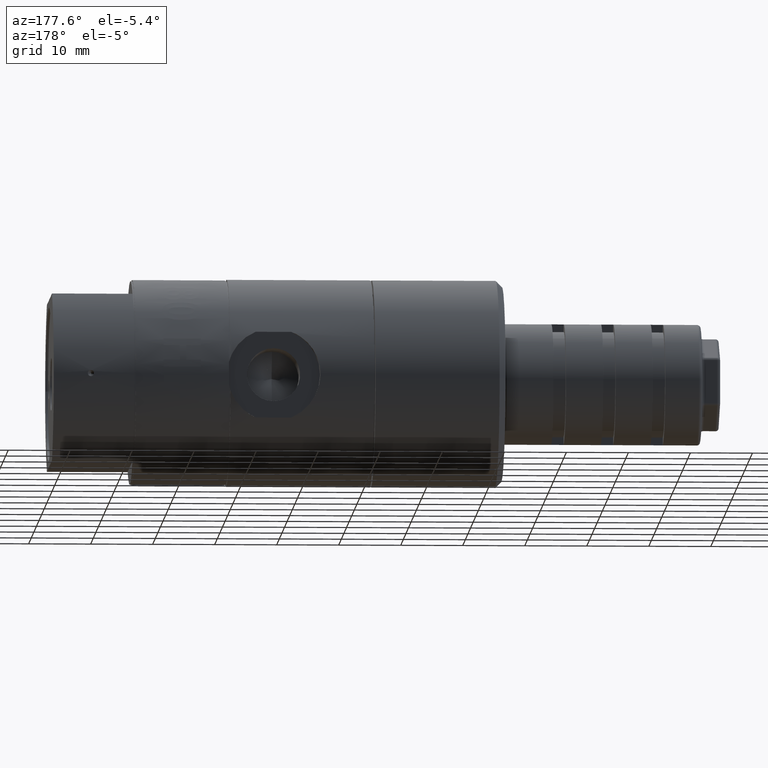
[diagram: clean part render]
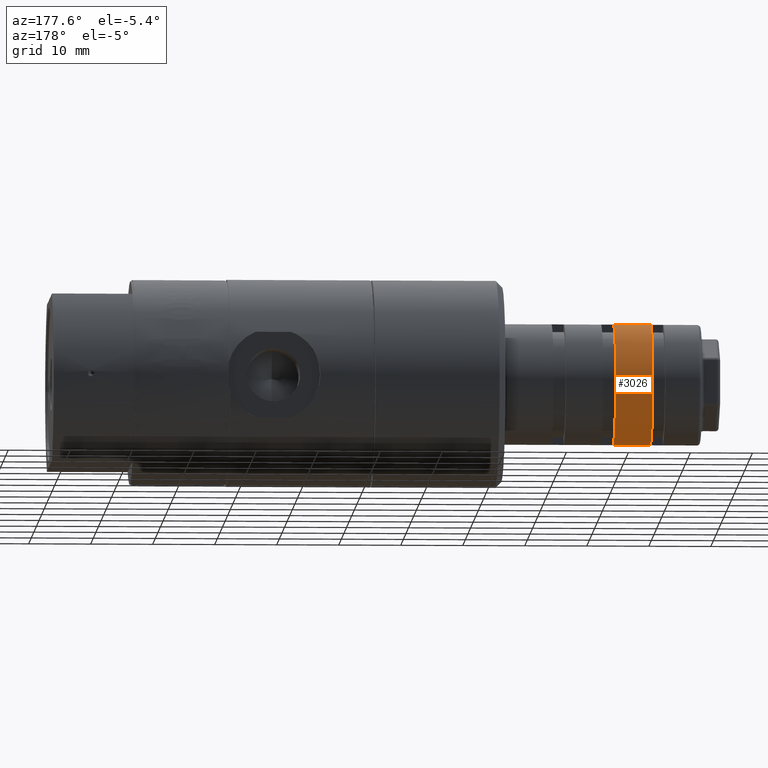
[diagram: same view with one face highlighted and labeled with its STEP entity id]
A machine part, auxiliary view. The second image highlights one B-rep face of the part: STEP entity #3026.
In plain terms, the highlighted cylindrical surface (partial cylindrical patch) has radius 9.75 mm, axis along (1, 0, 0).
Its self-contained STEP definition (entity closure, byte-faithful):
#193 = CARTESIAN_POINT ( 'NONE',  ( -90.89999999999999100, -1.512177427547000100E-015, -9.750000000000000000 ) ) ;
#1986 = CARTESIAN_POINT ( 'NONE',  ( -104.8999999999999900, 0.0000000000000000000, 0.0000000000000000000 ) ) ;
#2418 = LINE ( 'NONE', #9553, #4417 ) ;
#2652 = EDGE_CURVE ( 'NONE', #15893, #4868, #17096, .T. ) ;
#2846 = ORIENTED_EDGE ( 'NONE', *, *, #7999, .T. ) ;
#3026 = ADVANCED_FACE ( 'NONE', ( #12748 ), #7515, .T. ) ;
#3332 = CARTESIAN_POINT ( 'NONE',  ( -90.89999999999999100, 0.0000000000000000000, 0.0000000000000000000 ) ) ;
#4148 = VECTOR ( 'NONE', #6517, 1000.000000000000000 ) ;
#4417 = VECTOR ( 'NONE', #12604, 1000.000000000000000 ) ;
#4711 = DIRECTION ( 'NONE',  ( 0.0000000000000000000, -2.775557561562890400E-016, -1.000000000000000000 ) ) ;
#4714 = DIRECTION ( 'NONE',  ( 0.0000000000000000000, 2.775557561562890400E-016, 1.000000000000000000 ) ) ;
#4758 = CARTESIAN_POINT ( 'NONE',  ( -96.90000000000000600, 2.706168622523819900E-015, 9.750000000000000000 ) ) ;
#4868 = VERTEX_POINT ( 'NONE', #193 ) ;
#5887 = EDGE_CURVE ( 'NONE', #9437, #15893, #17994, .T. ) ;
#6451 = EDGE_LOOP ( 'NONE', ( #8856, #18518, #2846, #7022 ) ) ;
#6517 = DIRECTION ( 'NONE',  ( 1.000000000000000000, 0.0000000000000000000, 0.0000000000000000000 ) ) ;
#6670 = EDGE_CURVE ( 'NONE', #9437, #11404, #2418, .T. ) ;
#6689 = AXIS2_PLACEMENT_3D ( 'NONE', #3332, #9302, #4714 ) ;
#7022 = ORIENTED_EDGE ( 'NONE', *, *, #2652, .F. ) ;
#7515 = CYLINDRICAL_SURFACE ( 'NONE', #9235, 9.750000000000000000 ) ;
#7669 = CARTESIAN_POINT ( 'NONE',  ( -96.90000000000000600, -1.512177427547000100E-015, -9.750000000000000000 ) ) ;
#7999 = EDGE_CURVE ( 'NONE', #11404, #4868, #12635, .T. ) ;
#8856 = ORIENTED_EDGE ( 'NONE', *, *, #5887, .F. ) ;
#9235 = AXIS2_PLACEMENT_3D ( 'NONE', #1986, #13421, #4711 ) ;
#9302 = DIRECTION ( 'NONE',  ( -1.000000000000000000, 0.0000000000000000000, 0.0000000000000000000 ) ) ;
#9437 = VERTEX_POINT ( 'NONE', #4758 ) ;
#9553 = CARTESIAN_POINT ( 'NONE',  ( -104.8999999999999900, 3.900199251692487600E-015, 9.750000000000000000 ) ) ;
#9721 = CARTESIAN_POINT ( 'NONE',  ( -96.90000000000000600, 0.0000000000000000000, 0.0000000000000000000 ) ) ;
#10964 = CARTESIAN_POINT ( 'NONE',  ( -104.8999999999999900, -2.706168622523817900E-015, -9.750000000000000000 ) ) ;
#11318 = AXIS2_PLACEMENT_3D ( 'NONE', #9721, #16971, #17026 ) ;
#11404 = VERTEX_POINT ( 'NONE', #13785 ) ;
#12604 = DIRECTION ( 'NONE',  ( 1.000000000000000000, 0.0000000000000000000, 0.0000000000000000000 ) ) ;
#12635 = CIRCLE ( 'NONE', #6689, 9.750000000000000000 ) ;
#12748 = FACE_OUTER_BOUND ( 'NONE', #6451, .T. ) ;
#13421 = DIRECTION ( 'NONE',  ( 1.000000000000000000, 0.0000000000000000000, 0.0000000000000000000 ) ) ;
#13785 = CARTESIAN_POINT ( 'NONE',  ( -90.89999999999999100, 2.706168622523819900E-015, 9.750000000000000000 ) ) ;
#15893 = VERTEX_POINT ( 'NONE', #7669 ) ;
#16971 = DIRECTION ( 'NONE',  ( -1.000000000000000000, 0.0000000000000000000, 0.0000000000000000000 ) ) ;
#17026 = DIRECTION ( 'NONE',  ( 0.0000000000000000000, 2.775557561562890400E-016, 1.000000000000000000 ) ) ;
#17096 = LINE ( 'NONE', #10964, #4148 ) ;
#17994 = CIRCLE ( 'NONE', #11318, 9.750000000000000000 ) ;
#18518 = ORIENTED_EDGE ( 'NONE', *, *, #6670, .T. ) ;